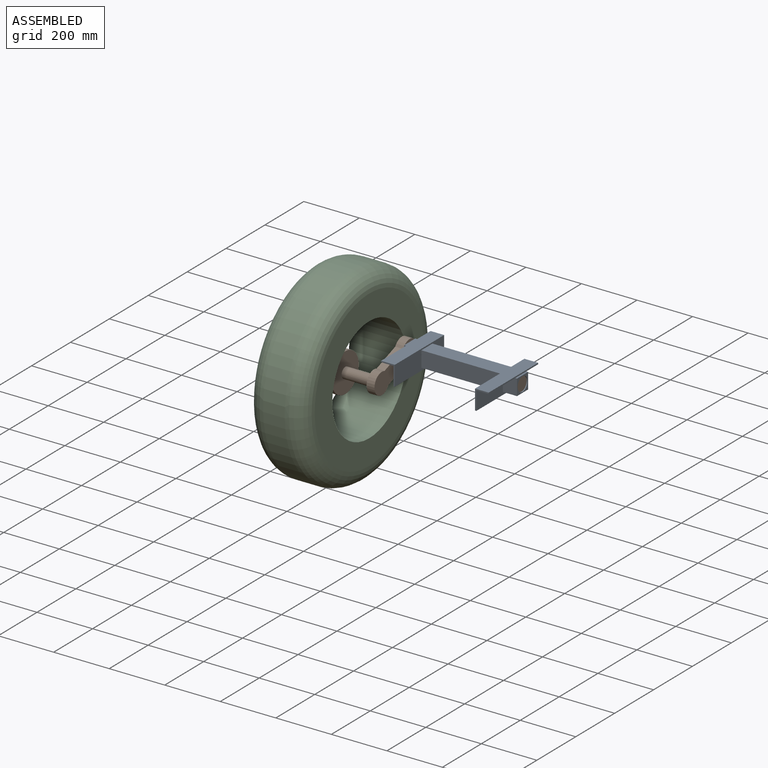
[diagram: assembled view]
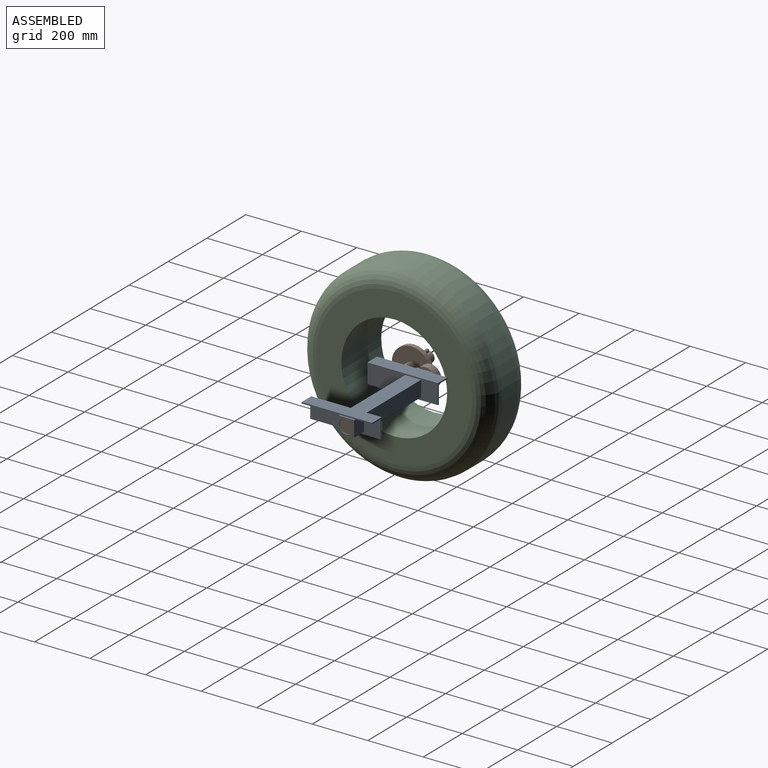
[diagram: assembled view, second angle]
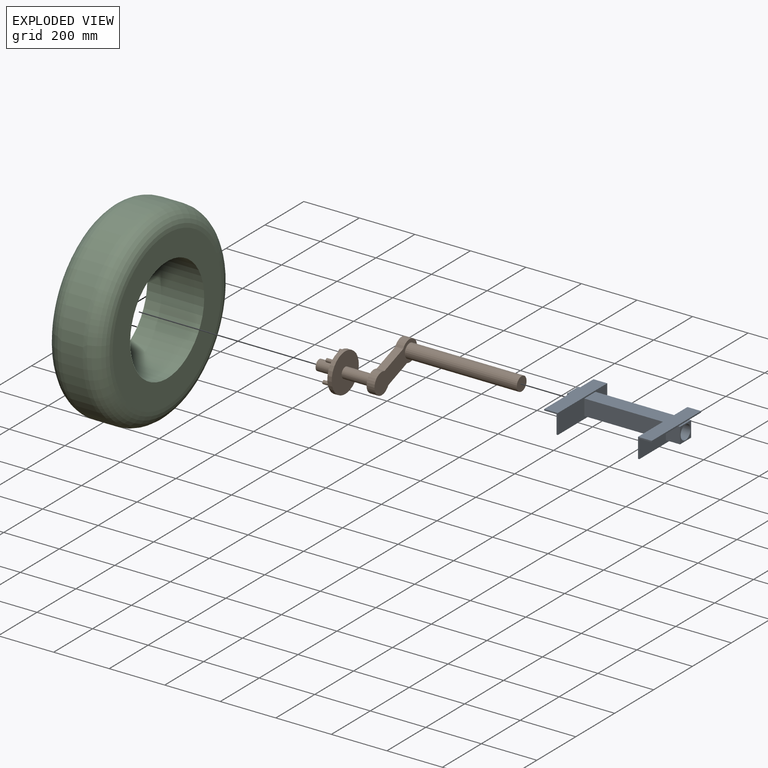
[diagram: exploded view]
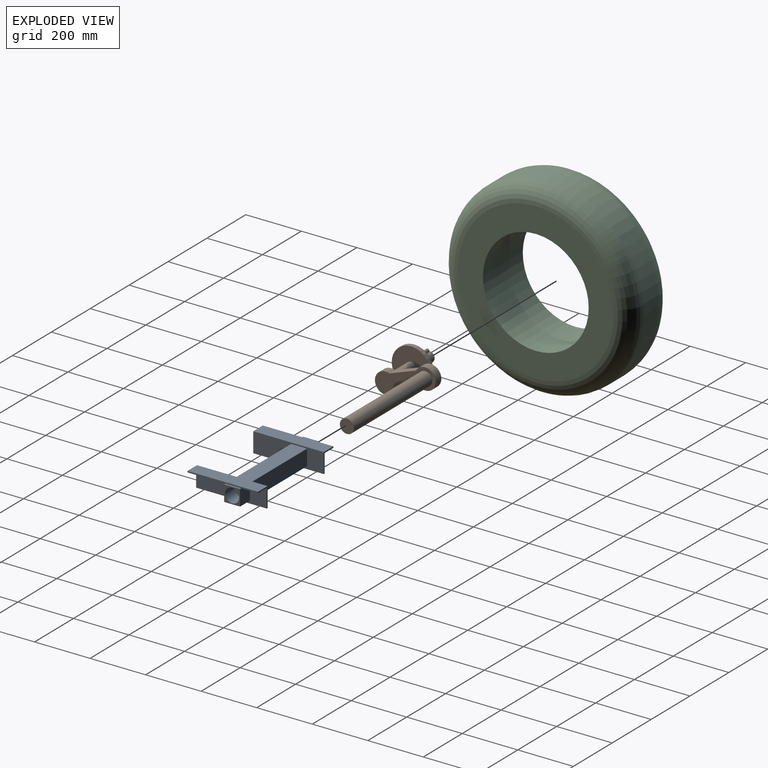
[diagram: exploded view, second angle]
ASSEMBLY  parts=3 mates=2
PART A: 39 faces, bbox 406.4x254x71.4 mm
  f0: plane 136.53x44.45mm, normal (0,0,-1), area 6068.5mm2, adj f1,f3,f7,f31
  f1: plane 254x66.68mm, normal (-1,0,0), area 13669.3mm2, adj f0,f4,f5,f7,f8,f30,f31,f32
  f2: plane 254x71.44mm, normal (1,0,0), area 14879mm2, adj f5,f6,f7,f8,f9,f10,f11,f12
  f3: plane 254x4.76mm, normal (-1,0,0), area 1209.7mm2, adj f0,f4,f6,f7,f8,f29
  f4: plane 60.33x44.45mm, normal (0,0,-1), area 2681.4mm2, adj f1,f3,f8,f30
  f5: plane 254x4.76mm, normal (0,0,-1), area 1209.7mm2, adj f1,f2,f7,f8
  f6: plane 254x49.21mm, normal (0,0,1), area 12500mm2, adj f2,f3,f7,f8
  f7: plane 71.44x49.21mm, normal (0,-1,0), area 551.9mm2, adj f0,f1,f2,f3,f5,f6
  f8: plane 71.44x49.21mm, normal (0,1,0), area 551.9mm2, adj f1,f2,f3,f4,f5,f6
  f9: plane 288.93x57.15mm, normal (0,0,-1), area 16512.1mm2, adj f2,f10,f11,f27
  f10: plane 288.93x57.15mm, normal (0,-1,0), area 16512.1mm2, adj f2,f9,f12,f27
  f11: plane 288.93x57.15mm, normal (0,1,0), area 16512.1mm2, adj f2,f9,f12,f27
  f12: plane 288.93x57.15mm, normal (0,0,1), area 16512.1mm2, adj f2,f10,f11,f27
  f13: plane 50.8x50.8mm, normal (1,0,0), area 2026.8mm2, adj f14
  f14: cylinder r=25.4mm len=50.8mm, axis (-1,0,0), area 8107.3mm2, adj f13,f15
  f15: plane 57.15x57.15mm, normal (1,0,0), area 1239.3mm2, adj f14,f16,f17,f18,f19
  f16: plane 57.15x6.35mm, normal (0,0,1), area 362.9mm2, adj f15,f17,f18,f22
  f17: plane 57.15x50.8mm, normal (0,1,0), area 2903.2mm2, adj f15,f16,f19,f26,f28
  f18: plane 57.15x50.8mm, normal (0,-1,0), area 2903.2mm2, adj f15,f16,f19,f23,f26
  f19: plane 57.15x50.8mm, normal (0,0,-1), area 2903.2mm2, adj f15,f17,f18,f26
  f20: plane 71.44x49.21mm, normal (0,1,0), area 551.9mm2, adj f22,f24,f25,f26,f27,f28
  f21: plane 71.44x49.21mm, normal (0,-1,0), area 551.9mm2, adj f22,f23,f24,f25,f26,f27
  f22: plane 254x4.76mm, normal (1,0,0), area 1209.7mm2, adj f16,f20,f21,f23,f25,f28
  f23: plane 136.53x44.45mm, normal (0,0,-1), area 6068.5mm2, adj f18,f21,f22,f26
  f24: plane 254x4.76mm, normal (0,0,-1), area 1209.7mm2, adj f20,f21,f26,f27
  f25: plane 254x49.21mm, normal (0,0,1), area 12500mm2, adj f20,f21,f22,f27
  f26: plane 254x66.68mm, normal (1,0,0), area 13669.3mm2, adj f17,f18,f19,f20,f21,f23,f24,f28
  f27: plane 254x71.44mm, normal (-1,0,0), area 14879mm2, adj f9,f10,f11,f12,f20,f21,f24,f25
  f28: plane 60.33x44.45mm, normal (0,0,-1), area 2681.4mm2, adj f17,f20,f22,f26
  f29: plane 57.15x12.7mm, normal (0,0,1), area 725.8mm2, adj f3,f30,f31,f34
  f30: plane 57.15x57.15mm, normal (0,1,0), area 3266.1mm2, adj f1,f4,f29,f32,f34
  f31: plane 57.15x57.15mm, normal (0,-1,0), area 3266.1mm2, adj f0,f1,f29,f32,f34
  f32: plane 57.15x57.15mm, normal (0,0,-1), area 3266.1mm2, adj f1,f30,f31,f34
  f33: cylinder r=25.4mm len=57.15mm, axis (-1,0,0), area 9120.7mm2, adj f34,f35
  f34: plane 57.15x57.15mm, normal (-1,0,0), area 1239.3mm2, adj f29,f30,f31,f32,f33
  f35: plane 50.8x50.8mm, normal (-1,0,0), area 2026.8mm2, adj f33
  f36: plane 50.8x50.8mm, normal (-1,0,0), area 2026.8mm2, adj f37
  f37: cylinder r=25.4mm len=288.93mm, axis (-1,0,0), area 46110.4mm2, adj f36,f38
  f38: plane 50.8x50.8mm, normal (1,0,0), area 2026.8mm2, adj f37
PART B: 24 faces, bbox 628.7x251.2x160.1 mm
  f0: cylinder r=6.35mm len=25.4mm, axis (-1,0,0), area 1013.4mm2, adj f1,f19
  f1: plane 12.7x12.7mm, normal (1,0,0), area 126.7mm2, adj f0
  f2: cylinder r=6.35mm len=25.4mm, axis (-1,0,0), area 1013.4mm2, adj f3,f19
  f3: plane 12.7x12.7mm, normal (1,0,0), area 126.7mm2, adj f2
  f4: cylinder r=6.35mm len=25.4mm, axis (-1,0,0), area 1013.4mm2, adj f5,f19
  f5: plane 12.7x12.7mm, normal (1,0,0), area 126.7mm2, adj f4
  f6: cylinder r=6.35mm len=25.4mm, axis (-1,0,0), area 1013.4mm2, adj f7,f19
  f7: plane 12.7x12.7mm, normal (1,0,0), area 126.7mm2, adj f6
  f8: cylinder r=19.05mm len=103.19mm, axis (-1,0,0), area 12351mm2, adj f14,f18
  f9: cylinder r=38.1mm len=76.2mm, axis (1,0,0), area 4994mm2, adj f10,f12,f13,f14
  f10: plane 95.85x34.89mm, normal (0,0.34,-0.94), area 2914.6mm2, adj f9,f11,f13,f14
  f11: cylinder r=38.1mm len=76.2mm, axis (1,0,0), area 4994mm2, adj f10,f12,f13,f14
  f12: plane 95.85x34.89mm, normal (0,-0.34,0.94), area 2914.6mm2, adj f9,f11,f13,f14
  f13: plane 219.41x128.32mm, normal (-1,0,0), area 11941.6mm2, adj f9,f10,f11,f12,f15
  f14: plane 219.41x128.32mm, normal (1,0,0), area 12788mm2, adj f8,f9,f10,f11,f12
  f15: cylinder r=25.15mm len=403.23mm, axis (1,0,0), area 63708.3mm2, adj f13,f16
  f16: plane 50.29x50.29mm, normal (-1,0,0), area 1986.5mm2, adj f15
  f17: cylinder r=69.85mm len=139.7mm, axis (1,0,0), area 6967.2mm2, adj f18,f19
  f18: plane 139.7x139.7mm, normal (-1,0,0), area 14187.8mm2, adj f8,f17
  f19: plane 139.7x139.7mm, normal (1,0,0), area 13554.4mm2, adj f0,f2,f4,f6,f17,f21,f22
  f20: plane 38.1x38.1mm, normal (1,0,0), area 1140.1mm2, adj f21
  f21: cylinder r=19.05mm len=77.79mm, axis (-1,0,0), area 9310.7mm2, adj f19,f20
  f22: cylinder r=6.35mm len=25.4mm, axis (-1,0,0), area 1013.4mm2, adj f19,f23
  f23: plane 12.7x12.7mm, normal (1,0,0), area 126.7mm2, adj f22
PART C: 6 faces, bbox 205x745.2x745.2 mm
  f0: cylinder r=190.5mm len=381mm, axis (1,0,0), area 245374.1mm2, adj f1,f5
  f1: plane 561.5x561.5mm, normal (1,0,0), area 133612.9mm2, adj f0,f2
  f2: torus R=280.75mm, axis (1,0,0), area 201287mm2, adj f1,f3
  f3: cylinder r=344.25mm len=688.5mm, axis (1,0,0), area 168713mm2, adj f2,f4
  f4: torus R=280.75mm, axis (1,0,0), area 201287mm2, adj f3,f5
  f5: plane 561.5x561.5mm, normal (-1,0,0), area 133612.9mm2, adj f0,f4
PLACE A at identity fixed
PLACE B rot(axis=(0,-0.94,-0.34),180deg) t=(-466.72,0,0)mm
PLACE C rot(axis=(1,0,0),40deg) t=(-585.79,-143.21,-52.12)mm
MATE fastened C.f0 <-> B.f8  axis (1,0,0) through (-585.79,-143.21,-52.12)mm
MATE revolute B.f15 <-> A.f14  axis (1,0,0) through (-438.15,0,0)mm
